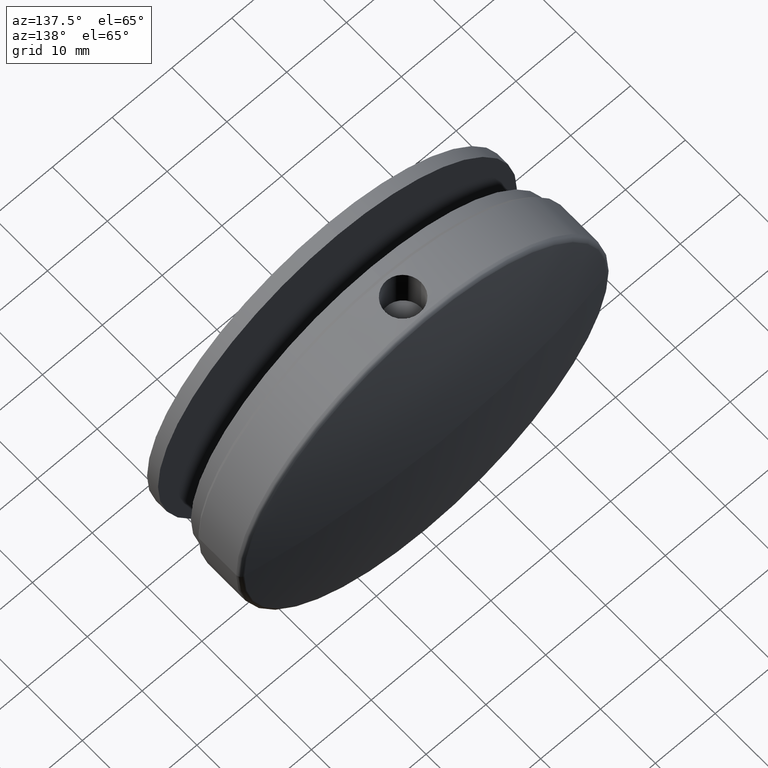
[diagram: clean part render]
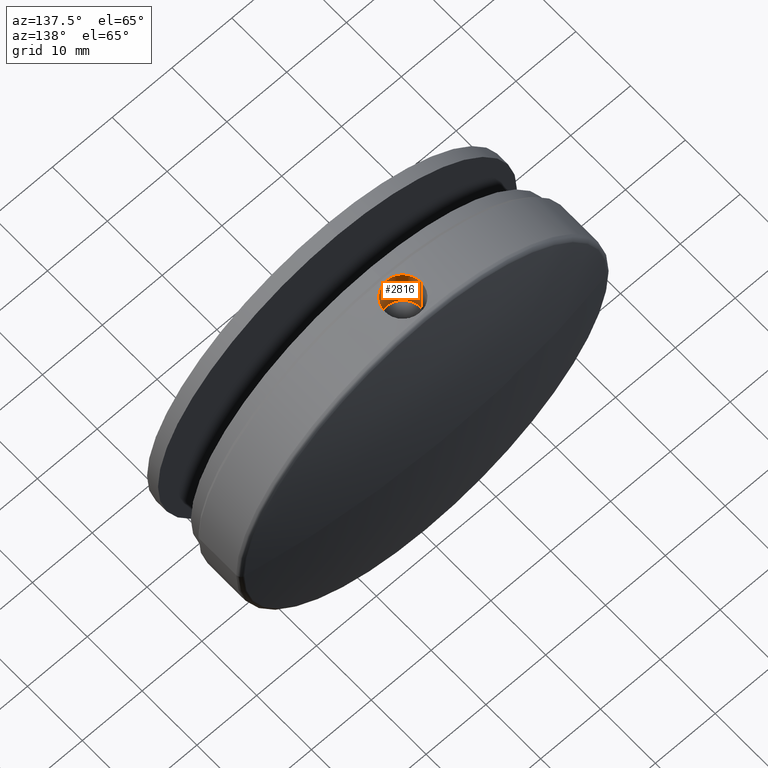
[diagram: same view with one face highlighted and labeled with its STEP entity id]
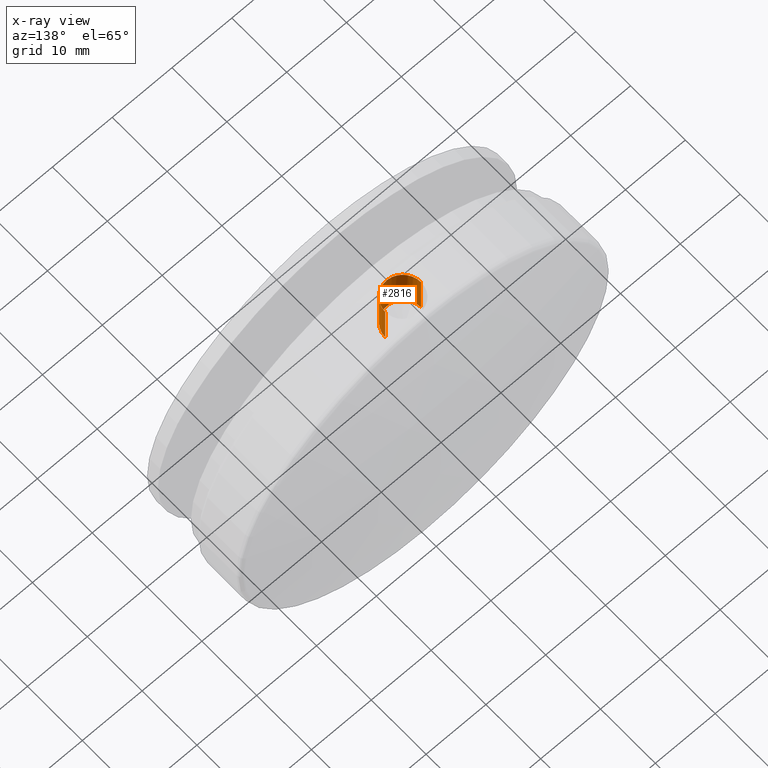
[diagram: x-ray of the same camera — body ghosted, the highlighted face saturated]
A machine part, auxiliary view. The second image highlights one B-rep face of the part: STEP entity #2816.
The next image is the same camera in x-ray: the body ghosted, the highlighted face saturated — about 0% of this face is hidden behind the body in this view.
In plain terms, the highlighted cylindrical surface (edge-blend (fillet) strip) has radius 3 mm, axis along (0, 0, 1).
Its self-contained STEP definition (entity closure, byte-faithful):
#350 = LINE ( 'NONE', #7665, #9394 ) ;
#351 = EDGE_CURVE ( 'NONE', #11819, #8046, #365, .T. ) ;
#365 = B_SPLINE_CURVE_WITH_KNOTS ( 'NONE', 3,
 ( #703, #12810, #4528, #15317, #14012, #7994, #15168, #813, #1915, #4417, #6748, #7946, #4367, #5632, #6895, #11545, #10495, #3274, #9130, #1971, #2127, #10553, #5731, #5679, #3119, #8056, #3321, #6954, #8109, #4473, #14065, #917, #9339, #759 ),
 .UNSPECIFIED., .F., .F.,
 ( 4, 2, 2, 2, 2, 2, 2, 2, 2, 2, 2, 2, 2, 2, 2, 2, 4 ),
 ( 0.000000000000000000, 0.0005865533964152013034, 0.001173106792830402607, 0.001759660189245603910, 0.002346213585660805213, 0.002932766982076007167, 0.003519320378491208687, 0.004105873774906410208, 0.004692427171321611294, 0.005278980567736812381, 0.005865533964152014335, 0.006452087360567215421, 0.007038640756982416508, 0.007625194153397617594, 0.008211747549812818681, 0.008798300946228019767, 0.009384854342643220854 ),
 .UNSPECIFIED. ) ;
#703 = CARTESIAN_POINT ( 'NONE',  ( 2.999999999999988010, 3.995000000000078266, 30.85449724108302760 ) ) ;
#759 = CARTESIAN_POINT ( 'NONE',  ( -2.999999999999989786, 3.995000000000078266, 30.85449724108302760 ) ) ;
#813 = CARTESIAN_POINT ( 'NONE',  ( 2.385912502826457615, 2.165833168061829461, 30.90824084956113538 ) ) ;
#917 = CARTESIAN_POINT ( 'NONE',  ( -2.980369985848704051, 3.600209821163923962, 30.85642366474026588 ) ) ;
#1012 = CARTESIAN_POINT ( 'NONE',  ( 2.999999999999988010, 3.995000000000078266, 31.00000000000000000 ) ) ;
#1031 = CARTESIAN_POINT ( 'NONE',  ( -9.462128050783531502E-16, 3.995000000000078266, 31.00000000000000000 ) ) ;
#1055 = CIRCLE ( 'NONE', #5927, 2.999999999999987566 ) ;
#1742 = CARTESIAN_POINT ( 'NONE',  ( -2.999999999999988454, 3.995000000000078266, 23.49999999999999289 ) ) ;
#1802 = EDGE_CURVE ( 'NONE', #15087, #8046, #350, .T. ) ;
#1836 = CARTESIAN_POINT ( 'NONE',  ( 2.999999999999988010, 3.995000000000078266, 30.85449724108302760 ) ) ;
#1915 = CARTESIAN_POINT ( 'NONE',  ( 2.259248386307644463, 2.011554821221562595, 30.91787546181836888 ) ) ;
#1971 = CARTESIAN_POINT ( 'NONE',  ( -0.7784701428185704097, 1.091126090219296296, 30.99082167002948296 ) ) ;
#2127 = CARTESIAN_POINT ( 'NONE',  ( -0.9655416694752716467, 1.147827344047738007, 30.98549311360786618 ) ) ;
#2816 = ADVANCED_FACE ( 'NONE', ( #11633 ), #10863, .F. ) ;
#3119 = CARTESIAN_POINT ( 'NONE',  ( -1.980895924021927490, 1.733299919612484308, 30.93696442513932254 ) ) ;
#3274 = CARTESIAN_POINT ( 'NONE',  ( -0.1947115944543201527, 0.9949292742604404216, 31.00000684442597532 ) ) ;
#3321 = CARTESIAN_POINT ( 'NONE',  ( -2.385118386747583141, 2.164866774843233088, 30.90830123276668573 ) ) ;
#3577 = EDGE_CURVE ( 'NONE', #15087, #12046, #1055, .T. ) ;
#4367 = CARTESIAN_POINT ( 'NONE',  ( 1.329169776190620711, 1.298431130452857518, 30.97201852730920990 ) ) ;
#4417 = CARTESIAN_POINT ( 'NONE',  ( 1.982580004953294672, 1.734992351293369595, 30.93684862534487579 ) ) ;
#4473 = CARTESIAN_POINT ( 'NONE',  ( -2.846855793899604414, 3.028516579733607550, 30.86909657359977288 ) ) ;
#4478 = CARTESIAN_POINT ( 'NONE',  ( -9.462128050783531502E-16, 3.995000000000078266, 23.49999999999999289 ) ) ;
#4528 = CARTESIAN_POINT ( 'NONE',  ( 2.980524043376238996, 3.601654255195966936, 30.85640848596136365 ) ) ;
#5632 = CARTESIAN_POINT ( 'NONE',  ( 0.9681758295985898322, 1.148807538986437615, 30.98540397530593893 ) ) ;
#5679 = CARTESIAN_POINT ( 'NONE',  ( -1.829395735746141449, 1.609313265293304873, 30.94640184555204598 ) ) ;
#5731 = CARTESIAN_POINT ( 'NONE',  ( -1.504437938733586000, 1.392144559791945735, 30.96390063336421150 ) ) ;
#5927 = AXIS2_PLACEMENT_3D ( 'NONE', #4478, #12914, #6956 ) ;
#6504 = DIRECTION ( 'NONE',  ( -0.000000000000000000, -0.000000000000000000, 1.000000000000000000 ) ) ;
#6748 = CARTESIAN_POINT ( 'NONE',  ( 1.831596699761798508, 1.610851044314511871, 30.94627959001746120 ) ) ;
#6895 = CARTESIAN_POINT ( 'NONE',  ( 0.7789791930407344855, 1.091177548621989679, 30.99081660632848312 ) ) ;
#6954 = CARTESIAN_POINT ( 'NONE',  ( -2.602355318988668564, 2.489701313906262481, 30.89076919741526339 ) ) ;
#6956 = DIRECTION ( 'NONE',  ( 1.000000000000000000, 0.000000000000000000, 0.000000000000000000 ) ) ;
#7010 = DIRECTION ( 'NONE',  ( -0.000000000000000000, -0.000000000000000000, 1.000000000000000000 ) ) ;
#7665 = CARTESIAN_POINT ( 'NONE',  ( -2.999999999999989786, 3.995000000000078266, 31.00000000000000000 ) ) ;
#7946 = CARTESIAN_POINT ( 'NONE',  ( 1.503640013976962564, 1.391544714837252839, 30.96394732010885775 ) ) ;
#7954 = LINE ( 'NONE', #1012, #11165 ) ;
#7994 = CARTESIAN_POINT ( 'NONE',  ( 2.695834673094440692, 2.664157122529443811, 30.88265201039098073 ) ) ;
#8046 = VERTEX_POINT ( 'NONE', #9564 ) ;
#8056 = CARTESIAN_POINT ( 'NONE',  ( -2.261068789367289167, 2.013383527223097769, 30.91775031327298251 ) ) ;
#8109 = CARTESIAN_POINT ( 'NONE',  ( -2.696316369946748726, 2.665129274678661897, 30.88260981870940824 ) ) ;
#8598 = CARTESIAN_POINT ( 'NONE',  ( 2.999999999999986677, 3.995000000000078266, 23.49999999999999289 ) ) ;
#9130 = CARTESIAN_POINT ( 'NONE',  ( -0.3936049285386361563, 1.014467395347750989, 30.99809863051376624 ) ) ;
#9339 = CARTESIAN_POINT ( 'NONE',  ( -2.999999999999988898, 3.799147846165444431, 30.85449724108302050 ) ) ;
#9394 = VECTOR ( 'NONE', #6504, 1000.000000000000000 ) ;
#9564 = CARTESIAN_POINT ( 'NONE',  ( -2.999999999999989786, 3.995000000000078266, 30.85449724108302760 ) ) ;
#10495 = CARTESIAN_POINT ( 'NONE',  ( 0.1968849296617881384, 0.9950711193552437273, 30.99999311748220876 ) ) ;
#10553 = CARTESIAN_POINT ( 'NONE',  ( -1.328908921399294618, 1.298212294799470090, 30.97203666676698219 ) ) ;
#10829 = ORIENTED_EDGE ( 'NONE', *, *, #1802, .T. ) ;
#10863 = CYLINDRICAL_SURFACE ( 'NONE', #12419, 2.999999999999988898 ) ;
#11165 = VECTOR ( 'NONE', #11954, 1000.000000000000000 ) ;
#11450 = ORIENTED_EDGE ( 'NONE', *, *, #351, .F. ) ;
#11545 = CARTESIAN_POINT ( 'NONE',  ( 0.3916336935047118328, 1.014124883120857801, 30.99813132368445423 ) ) ;
#11633 = FACE_OUTER_BOUND ( 'NONE', #13191, .T. ) ;
#11819 = VERTEX_POINT ( 'NONE', #1836 ) ;
#11954 = DIRECTION ( 'NONE',  ( -0.000000000000000000, -0.000000000000000000, 1.000000000000000000 ) ) ;
#12046 = VERTEX_POINT ( 'NONE', #8598 ) ;
#12195 = ORIENTED_EDGE ( 'NONE', *, *, #15360, .F. ) ;
#12419 = AXIS2_PLACEMENT_3D ( 'NONE', #1031, #7010, #14184 ) ;
#12810 = CARTESIAN_POINT ( 'NONE',  ( 2.999999999999988010, 3.796658055099889850, 30.85449724108302760 ) ) ;
#12914 = DIRECTION ( 'NONE',  ( -0.000000000000000000, -0.000000000000000000, 1.000000000000000000 ) ) ;
#13191 = EDGE_LOOP ( 'NONE', ( #13967, #10829, #11450, #12195 ) ) ;
#13967 = ORIENTED_EDGE ( 'NONE', *, *, #3577, .F. ) ;
#14012 = CARTESIAN_POINT ( 'NONE',  ( 2.846487557669706181, 3.027438150191974486, 30.86913067068129379 ) ) ;
#14065 = CARTESIAN_POINT ( 'NONE',  ( -2.903604340189307909, 3.215547388555927366, 30.86374197122125551 ) ) ;
#14184 = DIRECTION ( 'NONE',  ( 1.000000000000000000, 0.000000000000000000, 0.000000000000000000 ) ) ;
#15087 = VERTEX_POINT ( 'NONE', #1742 ) ;
#15168 = CARTESIAN_POINT ( 'NONE',  ( 2.603661116481116533, 2.491877063999526243, 30.89066007187524576 ) ) ;
#15317 = CARTESIAN_POINT ( 'NONE',  ( 2.904235158592380905, 3.218042734962140994, 30.86368232031374959 ) ) ;
#15360 = EDGE_CURVE ( 'NONE', #12046, #11819, #7954, .T. ) ;